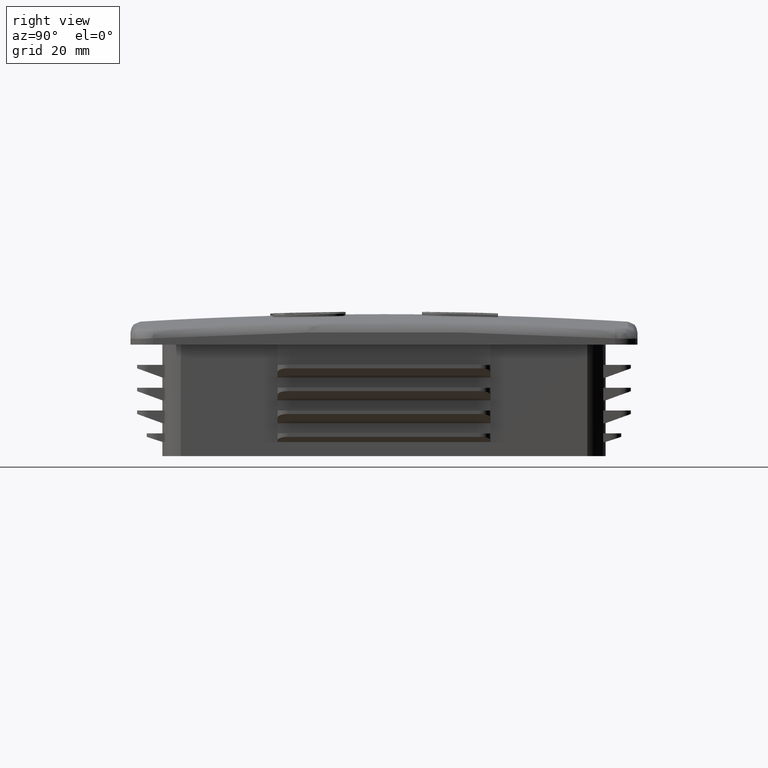
[diagram: clean part render]
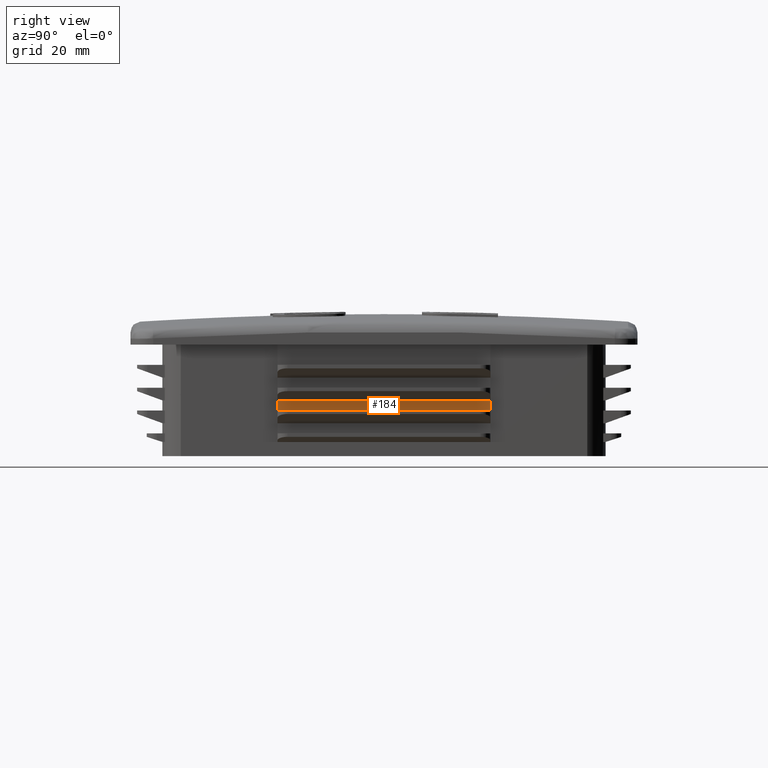
[diagram: same view with one face highlighted and labeled with its STEP entity id]
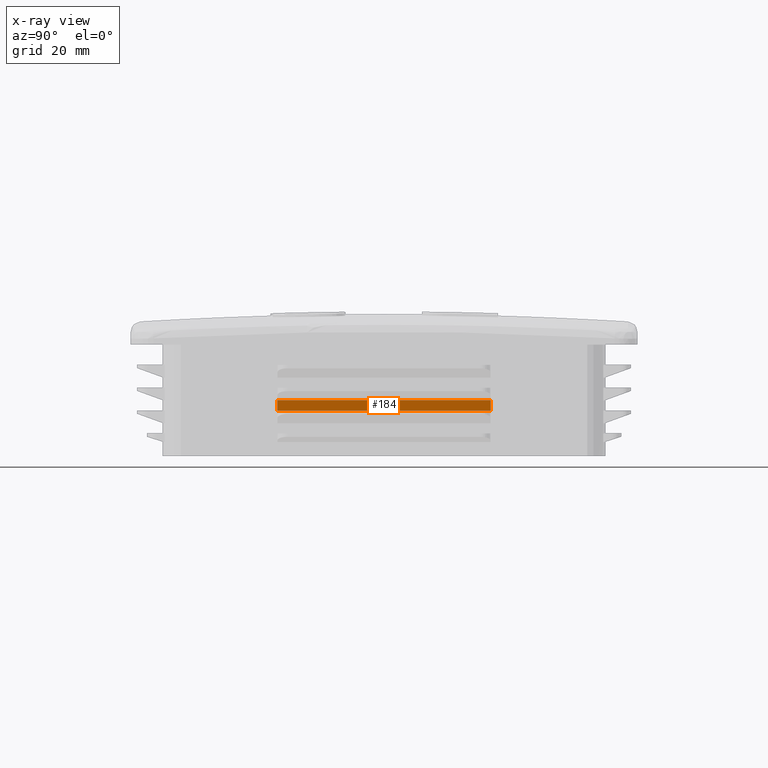
[diagram: x-ray of the same camera — body ghosted, the highlighted face saturated]
A machine part, right view. The second image highlights one B-rep face of the part: STEP entity #184.
The next image is the same camera in x-ray: the body ghosted, the highlighted face saturated — about 0% of this face is hidden behind the body in this view.
In plain terms, the highlighted planar face has unit normal (1, 0, 0).
Its self-contained STEP definition (entity closure, byte-faithful):
#184 = ADVANCED_FACE( '', ( #560 ), #561, .T. );
#560 = FACE_OUTER_BOUND( '', #2939, .T. );
#561 = PLANE( '', #2940 );
#2939 = EDGE_LOOP( '', ( #4313, #4314, #4315, #4316 ) );
#2940 = AXIS2_PLACEMENT_3D( '', #4317, #4318, #4319 );
#4313 = ORIENTED_EDGE( '', *, *, #5791, .F. );
#4314 = ORIENTED_EDGE( '', *, *, #5792, .T. );
#4315 = ORIENTED_EDGE( '', *, *, #5793, .T. );
#4316 = ORIENTED_EDGE( '', *, *, #5794, .F. );
#4317 = CARTESIAN_POINT( '', ( 43.7000000000000, -37.7000000000000, -22.0000000000000 ) );
#4318 = DIRECTION( '', ( 1.00000000000000, 0.000000000000000, 0.000000000000000 ) );
#4319 = DIRECTION( '', ( 0.000000000000000, -1.00000000000000, 0.000000000000000 ) );
#5791 = EDGE_CURVE( '', #6718, #6719, #6720, .T. );
#5792 = EDGE_CURVE( '', #6718, #6721, #6722, .T. );
#5793 = EDGE_CURVE( '', #6721, #6723, #6724, .T. );
#5794 = EDGE_CURVE( '', #6719, #6723, #6725, .T. );
#6718 = VERTEX_POINT( '', #9932 );
#6719 = VERTEX_POINT( '', #9933 );
#6720 = LINE( '', #9934, #9935 );
#6721 = VERTEX_POINT( '', #9936 );
#6722 = LINE( '', #9937, #9938 );
#6723 = VERTEX_POINT( '', #9939 );
#6724 = LINE( '', #9940, #9941 );
#6725 = LINE( '', #9942, #9943 );
#9932 = CARTESIAN_POINT( '', ( 43.7000000000000, -21.0000000000000, -11.0000000000000 ) );
#9933 = CARTESIAN_POINT( '', ( 43.7000000000000, 21.0000000000000, -11.0000000000000 ) );
#9934 = CARTESIAN_POINT( '', ( 43.7000000000000, -21.0000000000000, -11.0000000000000 ) );
#9935 = VECTOR( '', #10973, 1000.00000000000 );
#9936 = CARTESIAN_POINT( '', ( 43.7000000000000, -21.0000000000000, -13.0000000000000 ) );
#9937 = CARTESIAN_POINT( '', ( 43.7000000000000, -21.0000000000000, 0.000000000000000 ) );
#9938 = VECTOR( '', #10974, 1000.00000000000 );
#9939 = CARTESIAN_POINT( '', ( 43.7000000000000, 21.0000000000000, -13.0000000000000 ) );
#9940 = CARTESIAN_POINT( '', ( 43.7000000000000, -37.7000000000000, -13.0000000000000 ) );
#9941 = VECTOR( '', #10975, 1000.00000000000 );
#9942 = CARTESIAN_POINT( '', ( 43.7000000000000, 21.0000000000000, 0.000000000000000 ) );
#9943 = VECTOR( '', #10976, 1000.00000000000 );
#10973 = DIRECTION( '', ( 1.01689101063646E-031, 1.00000000000000, -6.12303176911190E-017 ) );
#10974 = DIRECTION( '', ( 0.000000000000000, 0.000000000000000, -1.00000000000000 ) );
#10975 = DIRECTION( '', ( 0.000000000000000, 1.00000000000000, -6.12303176911190E-017 ) );
#10976 = DIRECTION( '', ( 0.000000000000000, 0.000000000000000, -1.00000000000000 ) );